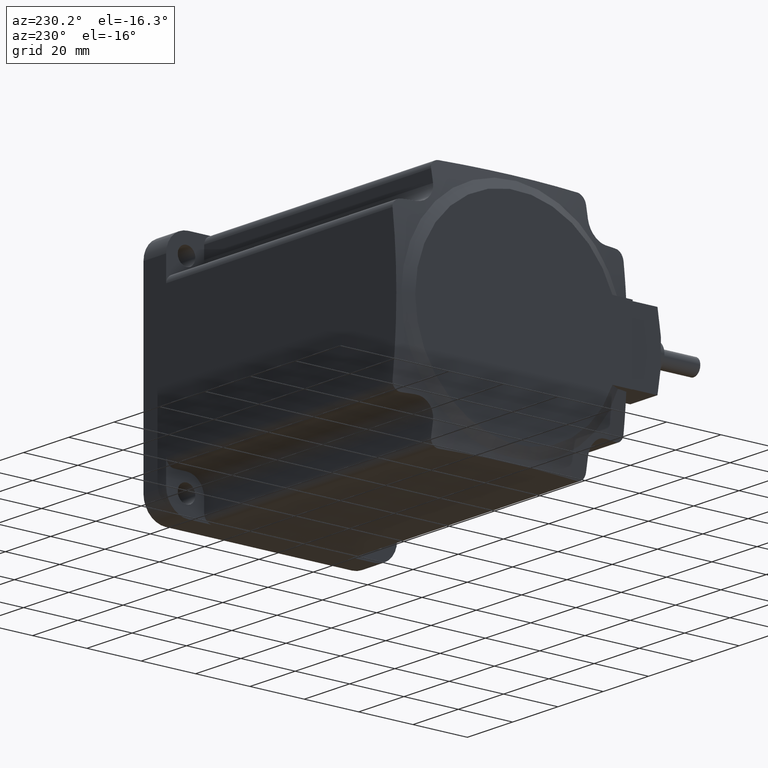
[diagram: clean part render]
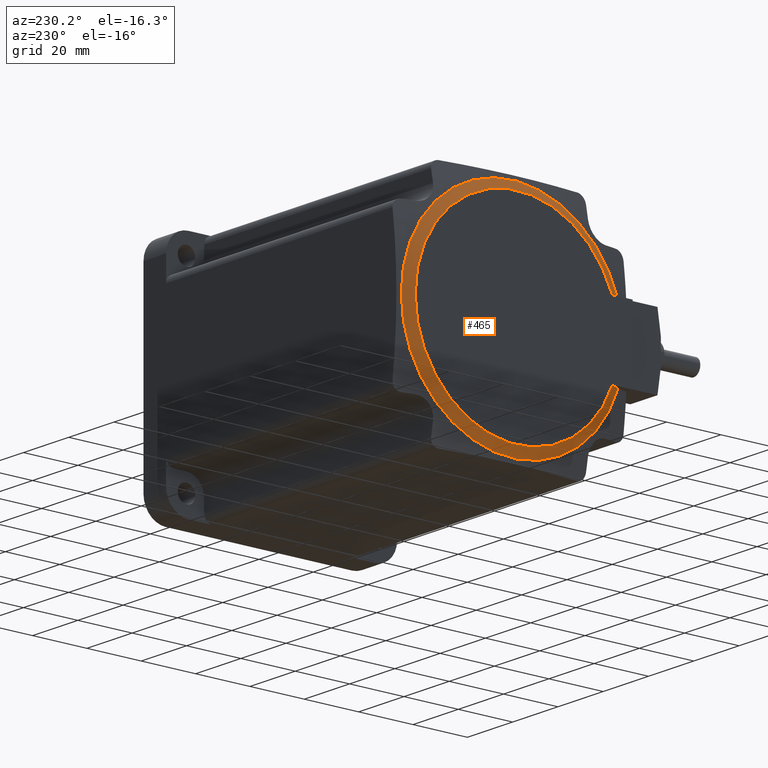
[diagram: same view with one face highlighted and labeled with its STEP entity id]
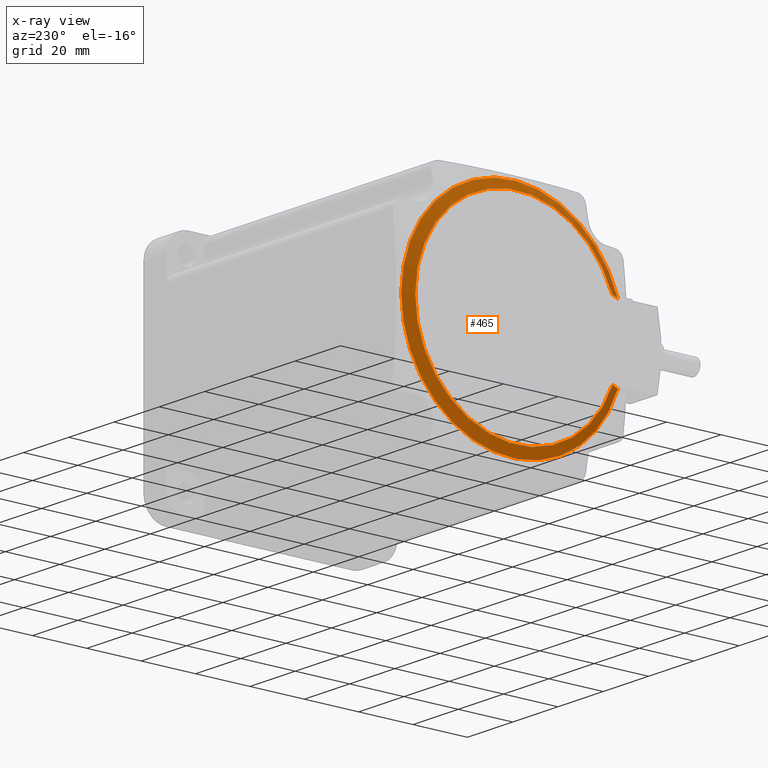
[diagram: x-ray of the same camera — body ghosted, the highlighted face saturated]
A machine part, auxiliary view. The second image highlights one B-rep face of the part: STEP entity #465.
The next image is the same camera in x-ray: the body ghosted, the highlighted face saturated — about 0% of this face is hidden behind the body in this view.
In plain terms, the highlighted conical surface has half-angle 60 deg.
Its self-contained STEP definition (entity closure, byte-faithful):
#465 = ADVANCED_FACE( '', ( #1111 ), #1112, .T. );
#1111 = FACE_OUTER_BOUND( '', #1939, .T. );
#1112 = CONICAL_SURFACE( '', #1940, 40.9640743395000, 1.04719755120000 );
#1939 = EDGE_LOOP( '', ( #3305, #3306, #3307, #3308 ) );
#1940 = AXIS2_PLACEMENT_3D( '', #3309, #3310, #3311 );
#3305 = ORIENTED_EDGE( '', *, *, #5407, .F. );
#3306 = ORIENTED_EDGE( '', *, *, #5408, .T. );
#3307 = ORIENTED_EDGE( '', *, *, #5409, .T. );
#3308 = ORIENTED_EDGE( '', *, *, #4955, .T. );
#3309 = CARTESIAN_POINT( '', ( -112.000015747604, 0.000000000000000, 0.000000000000000 ) );
#3310 = DIRECTION( '', ( 1.00000000000000, -0.000000000000000, -0.000000000000000 ) );
#3311 = DIRECTION( '', ( -0.000000000000000, 0.000000000000000, -1.00000000000000 ) );
#4955 = EDGE_CURVE( '', #5944, #5941, #5945, .T. );
#5407 = EDGE_CURVE( '', #6705, #5941, #6706, .T. );
#5408 = EDGE_CURVE( '', #6705, #6707, #6708, .T. );
#5409 = EDGE_CURVE( '', #6707, #5944, #6709, .T. );
#5941 = VERTEX_POINT( '', #7397 );
#5944 = VERTEX_POINT( '', #7400 );
#5945 = B_SPLINE_CURVE_WITH_KNOTS( '', 3, ( #7401, #7402, #7403, #7404 ), .UNSPECIFIED., .F., .F., ( 4, 4 ), ( 0.0302147176461610, 0.0343961082388450 ), .UNSPECIFIED. );
#6705 = VERTEX_POINT( '', #8557 );
#6706 = CIRCLE( '', #8558, 40.9640743395000 );
#6707 = VERTEX_POINT( '', #8559 );
#6708 = B_SPLINE_CURVE_WITH_KNOTS( '', 3, ( #8560, #8561, #8562, #8563 ), .UNSPECIFIED., .F., .F., ( 4, 4 ), ( 0.0332020698786392, 0.0373913574723388 ), .UNSPECIFIED. );
#6709 = CIRCLE( '', #8564, 37.5000000000000 );
#7397 = CARTESIAN_POINT( '', ( -112.000015747604, -38.7620031279487, 13.2500000000000 ) );
#7400 = CARTESIAN_POINT( '', ( -114.000000000000, -35.0811559102604, 13.2500000000000 ) );
#7401 = CARTESIAN_POINT( '', ( -114.000000000000, -35.0811559102604, 13.2500000000000 ) );
#7402 = CARTESIAN_POINT( '', ( -113.336430945419, -36.3097378444671, 13.2500000000000 ) );
#7403 = CARTESIAN_POINT( '', ( -112.669492669174, -37.5365599705296, 13.2500000000000 ) );
#7404 = CARTESIAN_POINT( '', ( -112.000015747604, -38.7620031279487, 13.2500000000000 ) );
#8557 = CARTESIAN_POINT( '', ( -112.000015747604, -38.7620031279487, -13.2500000000000 ) );
#8558 = AXIS2_PLACEMENT_3D( '', #10270, #10271, #10272 );
#8559 = CARTESIAN_POINT( '', ( -114.000000000000, -35.0811559102604, -13.2500000000000 ) );
#8560 = CARTESIAN_POINT( '', ( -112.000015747604, -38.7620031279487, -13.2500000000000 ) );
#8561 = CARTESIAN_POINT( '', ( -112.669541336798, -37.5364708869401, -13.2500000000000 ) );
#8562 = CARTESIAN_POINT( '', ( -113.336499025460, -36.3096117959295, -13.2500000000000 ) );
#8563 = CARTESIAN_POINT( '', ( -114.000000000000, -35.0811559102604, -13.2500000000000 ) );
#8564 = AXIS2_PLACEMENT_3D( '', #10273, #10274, #10275 );
#10270 = CARTESIAN_POINT( '', ( -112.000015747604, 0.000000000000000, 0.000000000000000 ) );
#10271 = DIRECTION( '', ( 1.00000000000000, 0.000000000000000, -0.000000000000000 ) );
#10272 = DIRECTION( '', ( -0.000000000000000, 0.000000000000000, -1.00000000000000 ) );
#10273 = CARTESIAN_POINT( '', ( -114.000000000000, 0.000000000000000, 0.000000000000000 ) );
#10274 = DIRECTION( '', ( 1.00000000000000, 0.000000000000000, -0.000000000000000 ) );
#10275 = DIRECTION( '', ( -0.000000000000000, 0.000000000000000, -1.00000000000000 ) );